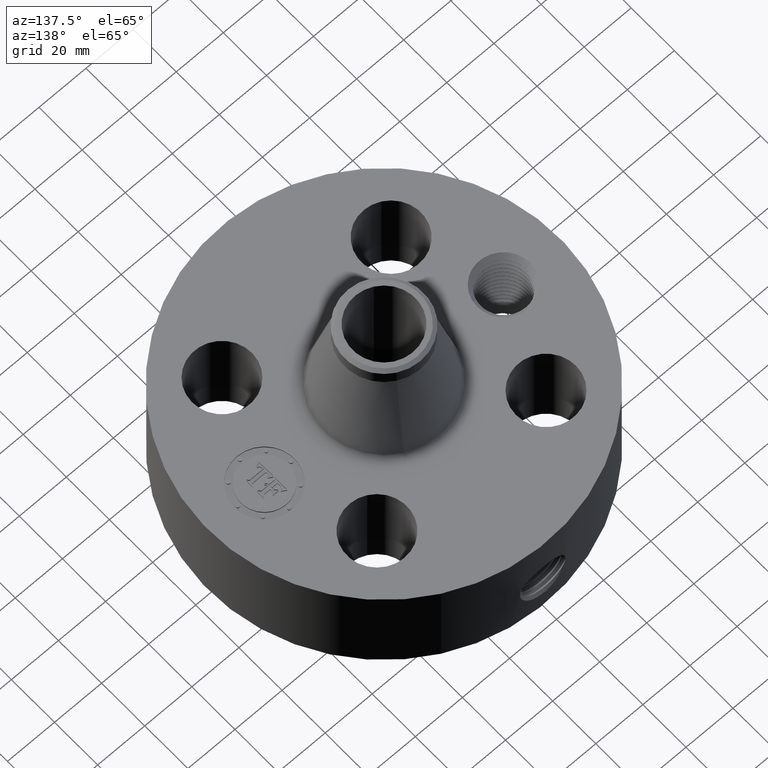
[diagram: clean part render]
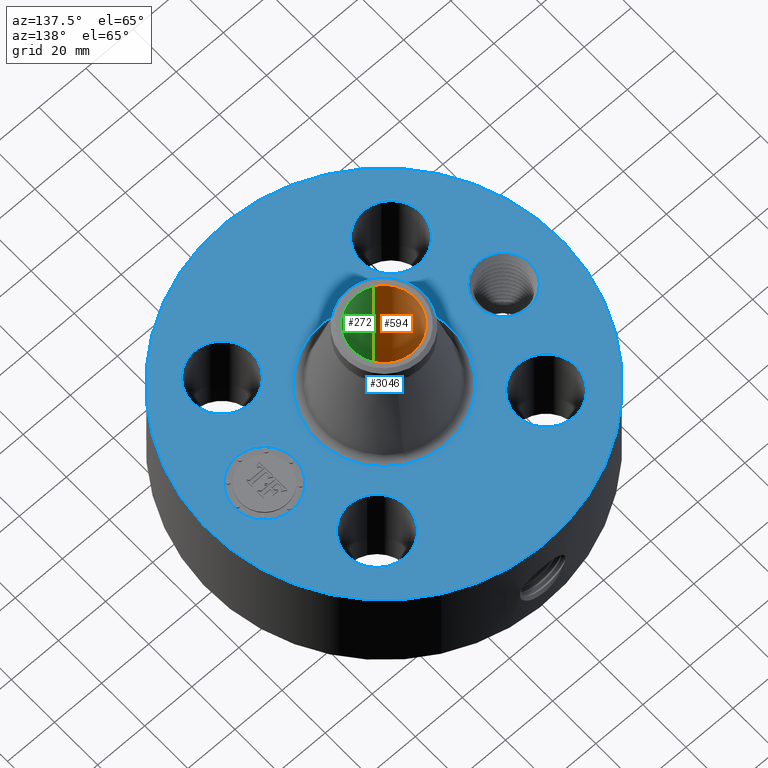
[diagram: same view with three faces highlighted in distinct colors, each labeled with its STEP entity id]
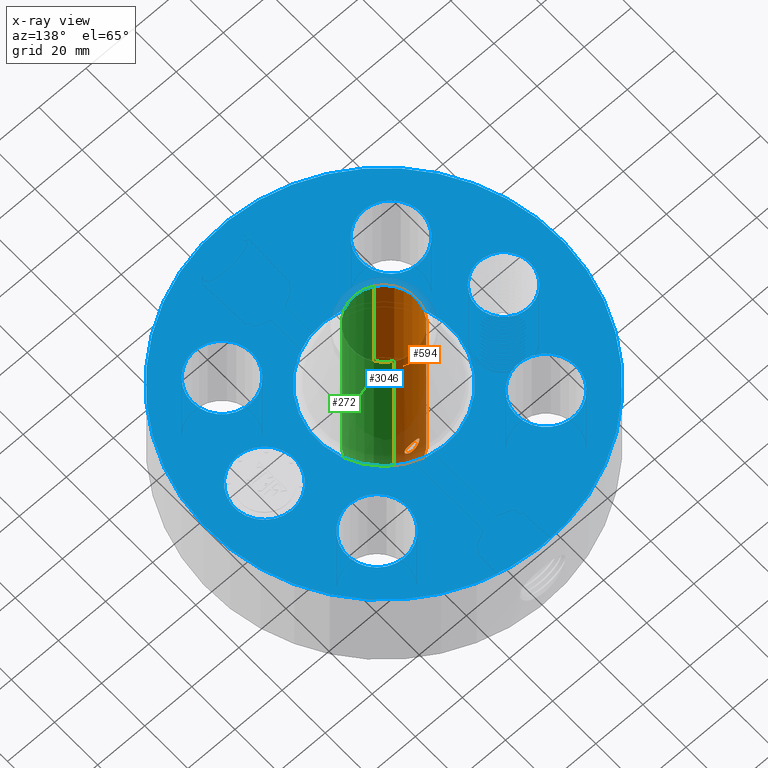
[diagram: x-ray of the same camera — body ghosted, the three highlighted faces saturated]
A machine part, auxiliary view with three faces highlighted in distinct colors.
The next image is the same camera in x-ray (body ghosted, the three faces saturated) — at least one of them is partly hidden behind the body in this view.
Their STEP definitions:

[orange] entity #594 — the highlighted cylindrical surface (partial cylindrical patch) has radius 13.3223 mm, axis along (0, 0, -1).
#232=AXIS2_PLACEMENT_3D('Cylinder Axis2P3D',#229,#230,#231) ;
#533=AXIS2_PLACEMENT_3D('Circle Axis2P3D',#531,#532,$) ;
#543=AXIS2_PLACEMENT_3D('Circle Axis2P3D',#541,#542,$) ;
#229=CARTESIAN_POINT('Axis2P3D Location',(0.,0.,1.75000000001)) ;
#238=CARTESIAN_POINT('Vertex',(0.251458694999,0.460292053713,3.50000000001)) ;
#240=CARTESIAN_POINT('Vertex',(-0.251458694999,-0.460292053713,3.50000000001)) ;
#243=CARTESIAN_POINT('Line Origine',(0.251458694999,0.460292053713,1.75000000001)) ;
#247=CARTESIAN_POINT('Vertex',(0.251458694999,0.460292053713,-5.31508345647E-015)) ;
#254=CARTESIAN_POINT('Vertex',(-0.251458694999,-0.460292053713,-5.31508345647E-015)) ;
#257=CARTESIAN_POINT('Line Origine',(-0.251458694999,-0.460292053713,1.75000000001)) ;
#531=CARTESIAN_POINT('Axis2P3D Location',(0.,0.,3.50000000001)) ;
#541=CARTESIAN_POINT('Axis2P3D Location',(0.,0.,-5.59482469102E-015)) ;
#553=CARTESIAN_POINT('Control Point',(-0.109697820237,0.512900222497,0.690071807677)) ;
#554=CARTESIAN_POINT('Control Point',(-0.103067995138,0.514318192952,0.677935994236)) ;
#555=CARTESIAN_POINT('Control Point',(-0.094771969541,0.515980503399,0.666739003861)) ;
#556=CARTESIAN_POINT('Control Point',(-0.0849803702612,0.51773919703,0.656766683969)) ;
#557=CARTESIAN_POINT('Control Point',(-0.0538199881034,0.522434964879,0.632784739658)) ;
#558=CARTESIAN_POINT('Control Point',(-0.0149493305924,0.525251537098,0.621930833715)) ;
#559=CARTESIAN_POINT('Control Point',(0.0116326804203,0.525346375616,0.621582790696)) ;
#560=CARTESIAN_POINT('Control Point',(0.0508447925119,0.522756079786,0.631451412035)) ;
#561=CARTESIAN_POINT('Control Point',(0.0826523564062,0.518124437442,0.654683886725)) ;
#562=CARTESIAN_POINT('Control Point',(0.0927261783338,0.516359982354,0.664453516059)) ;
#563=CARTESIAN_POINT('Control Point',(0.117112916642,0.511563161852,0.695769043994)) ;
#564=CARTESIAN_POINT('Control Point',(0.128164416092,0.508593381511,0.735004093707)) ;
#565=CARTESIAN_POINT('Control Point',(0.128487390483,0.508500379865,0.761961602396)) ;
#566=CARTESIAN_POINT('Control Point',(0.121927405503,0.510284589305,0.787542086658)) ;
#567=CARTESIAN_POINT('Control Point',(0.109697820237,0.512900222497,0.809928192329)) ;
#568=CARTESIAN_POINT('Vertex',(-0.109697820237,0.512900222497,0.690071807677)) ;
#570=CARTESIAN_POINT('Vertex',(0.109697820237,0.512900222497,0.809928192329)) ;
#574=CARTESIAN_POINT('Control Point',(-0.109697820237,0.512900222497,0.690071807677)) ;
#575=CARTESIAN_POINT('Control Point',(-0.116234280642,0.51150222065,0.702036718193)) ;
#576=CARTESIAN_POINT('Control Point',(-0.121151116865,0.510341730081,0.714914160907)) ;
#577=CARTESIAN_POINT('Control Point',(-0.12427729477,0.509563203993,0.728420059682)) ;
#578=CARTESIAN_POINT('Control Point',(-0.127559697455,0.508761572469,0.765208855743)) ;
#579=CARTESIAN_POINT('Control Point',(-0.117478559258,0.511227660569,0.801329040844)) ;
#580=CARTESIAN_POINT('Control Point',(-0.106063810002,0.513973823365,0.821921962222)) ;
#581=CARTESIAN_POINT('Control Point',(-0.0747703859217,0.520006013883,0.856599469487)) ;
#582=CARTESIAN_POINT('Control Point',(-0.0313370516027,0.524299170456,0.874347891388)) ;
#583=CARTESIAN_POINT('Control Point',(-0.00765580743139,0.52527137436,0.87804131915)) ;
#584=CARTESIAN_POINT('Control Point',(0.0355699630457,0.524258134677,0.874476504668)) ;
#585=CARTESIAN_POINT('Control Point',(0.0731881901034,0.519775727891,0.854056731066)) ;
#586=CARTESIAN_POINT('Control Point',(0.0882205331282,0.517280293423,0.841642253735)) ;
#587=CARTESIAN_POINT('Control Point',(0.10054648706,0.51485748681,0.826679595346)) ;
#588=CARTESIAN_POINT('Control Point',(0.109697820237,0.512900222497,0.809928192329)) ;
#230=DIRECTION('Axis2P3D Direction',(0.,0.,-0.0393700787402)) ;
#231=DIRECTION('Axis2P3D XDirection',(-0.0188750212049,-0.0345504945626,0.)) ;
#244=DIRECTION('Vector Direction',(0.,0.,-0.0393700787402)) ;
#258=DIRECTION('Vector Direction',(0.,0.,-0.0393700787402)) ;
#532=DIRECTION('Axis2P3D Direction',(0.,0.,-0.0393700787402)) ;
#542=DIRECTION('Axis2P3D Direction',(0.,0.,-0.0393700787402)) ;
#245=VECTOR('Line Direction',#244,0.0393700787402) ;
#259=VECTOR('Line Direction',#258,0.0393700787402) ;
#547=ORIENTED_EDGE('',*,*,#535,.F.) ;
#548=ORIENTED_EDGE('',*,*,#261,.T.) ;
#549=ORIENTED_EDGE('',*,*,#545,.T.) ;
#550=ORIENTED_EDGE('',*,*,#249,.F.) ;
#591=ORIENTED_EDGE('',*,*,#572,.F.) ;
#592=ORIENTED_EDGE('',*,*,#589,.T.) ;
#593=FACE_BOUND('',#590,.T.) ;
#594=ADVANCED_FACE('PartBody',(#551,#593),#233,.F.) ;
#552=B_SPLINE_CURVE_WITH_KNOTS('',5,(#553,#554,#555,#556,#557,#558,#559,#560,#561,#562,#563,#564,#565,#566,#567),.UNSPECIFIED.,.F.,.U.,(6,3,3,3,6),(0.,2.4967256134,7.04499234116,9.55164643702,14.1571855453),.UNSPECIFIED.) ;
#573=B_SPLINE_CURVE_WITH_KNOTS('',5,(#574,#575,#576,#577,#578,#579,#580,#581,#582,#583,#584,#585,#586,#587,#588),.UNSPECIFIED.,.F.,.U.,(6,3,3,3,6),(0.,2.46156540655,6.57020743803,10.7112749787,14.1575752351),.UNSPECIFIED.) ;
#534=CIRCLE('generated circle',#533,0.524500000002) ;
#544=CIRCLE('generated circle',#543,0.524500000002) ;
#233=CYLINDRICAL_SURFACE('generated cylinder',#232,0.524500000002) ;
#249=EDGE_CURVE('',#239,#248,#246,.T.) ;
#261=EDGE_CURVE('',#241,#255,#260,.T.) ;
#535=EDGE_CURVE('',#241,#239,#534,.T.) ;
#545=EDGE_CURVE('',#255,#248,#544,.T.) ;
#572=EDGE_CURVE('',#569,#571,#552,.T.) ;
#589=EDGE_CURVE('',#569,#571,#573,.T.) ;
#546=EDGE_LOOP('',(#547,#548,#549,#550)) ;
#590=EDGE_LOOP('',(#591,#592)) ;
#551=FACE_OUTER_BOUND('',#546,.T.) ;
#246=LINE('Line',#243,#245) ;
#260=LINE('Line',#257,#259) ;
#239=VERTEX_POINT('',#238) ;
#241=VERTEX_POINT('',#240) ;
#248=VERTEX_POINT('',#247) ;
#255=VERTEX_POINT('',#254) ;
#569=VERTEX_POINT('',#568) ;
#571=VERTEX_POINT('',#570) ;

[blue] entity #3046 — the highlighted planar face has unit normal (0, 0, -1).
#2190=AXIS2_PLACEMENT_3D('Circle Axis2P3D',#2188,#2189,$) ;
#2216=AXIS2_PLACEMENT_3D('Circle Axis2P3D',#2214,#2215,$) ;
#2914=AXIS2_PLACEMENT_3D('Plane Axis2P3D',#2911,#2912,#2913) ;
#2918=AXIS2_PLACEMENT_3D('Circle Axis2P3D',#2916,#2917,$) ;
#2927=AXIS2_PLACEMENT_3D('Circle Axis2P3D',#2925,#2926,$) ;
#2936=AXIS2_PLACEMENT_3D('Circle Axis2P3D',#2934,#2935,$) ;
#2945=AXIS2_PLACEMENT_3D('Circle Axis2P3D',#2943,#2944,$) ;
#2954=AXIS2_PLACEMENT_3D('Circle Axis2P3D',#2952,#2953,$) ;
#2963=AXIS2_PLACEMENT_3D('Circle Axis2P3D',#2961,#2962,$) ;
#2976=AXIS2_PLACEMENT_3D('Circle Axis2P3D',#2974,#2975,$) ;
#2985=AXIS2_PLACEMENT_3D('Circle Axis2P3D',#2983,#2984,$) ;
#2994=AXIS2_PLACEMENT_3D('Circle Axis2P3D',#2992,#2993,$) ;
#3003=AXIS2_PLACEMENT_3D('Circle Axis2P3D',#3001,#3002,$) ;
#3012=AXIS2_PLACEMENT_3D('Circle Axis2P3D',#3010,#3011,$) ;
#3021=AXIS2_PLACEMENT_3D('Circle Axis2P3D',#3019,#3020,$) ;
#3030=AXIS2_PLACEMENT_3D('Circle Axis2P3D',#3028,#3029,$) ;
#3039=AXIS2_PLACEMENT_3D('Circle Axis2P3D',#3037,#3038,$) ;
#2188=CARTESIAN_POINT('Axis2P3D Location',(0.,0.,1.75000000001)) ;
#2192=CARTESIAN_POINT('Vertex',(-0.538654850713,-0.986001090472,1.75000000001)) ;
#2194=CARTESIAN_POINT('Vertex',(0.538654850713,0.986001090472,1.75000000001)) ;
#2214=CARTESIAN_POINT('Axis2P3D Location',(0.,0.,1.75000000001)) ;
#2911=CARTESIAN_POINT('Axis2P3D Location',(0.,2.94000000001,1.75000000001)) ;
#2916=CARTESIAN_POINT('Axis2P3D Location',(0.,0.,1.75000000001)) ;
#2920=CARTESIAN_POINT('Vertex',(1.4095110835,2.58009273197,1.75000000001)) ;
#2922=CARTESIAN_POINT('Vertex',(-1.4095110835,-2.58009273197,1.75000000001)) ;
#2925=CARTESIAN_POINT('Axis2P3D Location',(0.,0.,1.75000000001)) ;
#2934=CARTESIAN_POINT('Axis2P3D Location',(-2.00000000001,5.59482469102E-016,1.75000000001)) ;
#2938=CARTESIAN_POINT('Vertex',(-2.38859355841,0.212289628495,1.75000000001)) ;
#2940=CARTESIAN_POINT('Vertex',(-1.6114064416,-0.212289628495,1.75000000001)) ;
#2943=CARTESIAN_POINT('Axis2P3D Location',(-2.00000000001,5.59482469102E-016,1.75000000001)) ;
#2952=CARTESIAN_POINT('Axis2P3D Location',(1.41421356238,-1.41421356238,1.75000000001)) ;
#2956=CARTESIAN_POINT('Vertex',(0.975422281432,-1.17450079308,1.75000000001)) ;
#2958=CARTESIAN_POINT('Vertex',(1.85300484333,-1.65392633168,1.75000000001)) ;
#2961=CARTESIAN_POINT('Axis2P3D Location',(1.41421356238,-1.41421356238,1.75000000001)) ;
#2974=CARTESIAN_POINT('Axis2P3D Location',(-1.41421356238,-1.41421356238,1.75000000001)) ;
#2978=CARTESIAN_POINT('Vertex',(-1.65392633168,-1.85300484333,1.75000000001)) ;
#2980=CARTESIAN_POINT('Vertex',(-1.17450079308,-0.975422281432,1.75000000001)) ;
#2983=CARTESIAN_POINT('Axis2P3D Location',(-1.41421356238,-1.41421356238,1.75000000001)) ;
#2992=CARTESIAN_POINT('Axis2P3D Location',(-1.41421356238,1.41421356238,1.75000000001)) ;
#2996=CARTESIAN_POINT('Vertex',(-1.85300484333,1.65392633168,1.75000000001)) ;
#2998=CARTESIAN_POINT('Vertex',(-0.975422281432,1.17450079308,1.75000000001)) ;
#3001=CARTESIAN_POINT('Axis2P3D Location',(-1.41421356238,1.41421356238,1.75000000001)) ;
#3010=CARTESIAN_POINT('Axis2P3D Location',(1.41421356238,1.41421356238,1.75000000001)) ;
#3014=CARTESIAN_POINT('Vertex',(1.65392633168,1.85300484333,1.75000000001)) ;
#3016=CARTESIAN_POINT('Vertex',(1.17450079308,0.975422281432,1.75000000001)) ;
#3019=CARTESIAN_POINT('Axis2P3D Location',(1.41421356238,1.41421356238,1.75000000001)) ;
#3028=CARTESIAN_POINT('Axis2P3D Location',(2.00000000001,-5.03534222192E-015,1.75000000001)) ;
#3032=CARTESIAN_POINT('Vertex',(2.00000000001,0.499999995002,1.75000000001)) ;
#3034=CARTESIAN_POINT('Vertex',(2.00000000001,-0.499999995002,1.75000000001)) ;
#3037=CARTESIAN_POINT('Axis2P3D Location',(2.00000000001,-5.03534222192E-015,1.75000000001)) ;
#2189=DIRECTION('Axis2P3D Direction',(0.,0.,-0.0393700787402)) ;
#2215=DIRECTION('Axis2P3D Direction',(0.,0.,-0.0393700787402)) ;
#2912=DIRECTION('Axis2P3D Direction',(0.,0.,-0.0393700787402)) ;
#2913=DIRECTION('Axis2P3D XDirection',(0.0393700787402,0.,0.)) ;
#2917=DIRECTION('Axis2P3D Direction',(0.,0.,-0.0393700787402)) ;
#2926=DIRECTION('Axis2P3D Direction',(0.,0.,-0.0393700787402)) ;
#2935=DIRECTION('Axis2P3D Direction',(0.,0.,-0.0393700787402)) ;
#2944=DIRECTION('Axis2P3D Direction',(0.,0.,-0.0393700787402)) ;
#2953=DIRECTION('Axis2P3D Direction',(0.,0.,-0.0393700787402)) ;
#2962=DIRECTION('Axis2P3D Direction',(0.,0.,-0.0393700787402)) ;
#2975=DIRECTION('Axis2P3D Direction',(0.,0.,-0.0393700787402)) ;
#2984=DIRECTION('Axis2P3D Direction',(0.,0.,-0.0393700787402)) ;
#2993=DIRECTION('Axis2P3D Direction',(0.,0.,-0.0393700787402)) ;
#3002=DIRECTION('Axis2P3D Direction',(0.,0.,-0.0393700787402)) ;
#3011=DIRECTION('Axis2P3D Direction',(0.,0.,-0.0393700787402)) ;
#3020=DIRECTION('Axis2P3D Direction',(0.,0.,-0.0393700787402)) ;
#3029=DIRECTION('Axis2P3D Direction',(0.,0.,-0.0393700787402)) ;
#3038=DIRECTION('Axis2P3D Direction',(0.,0.,-0.0393700787402)) ;
#2931=ORIENTED_EDGE('',*,*,#2924,.F.) ;
#2932=ORIENTED_EDGE('',*,*,#2929,.F.) ;
#2949=ORIENTED_EDGE('',*,*,#2942,.T.) ;
#2950=ORIENTED_EDGE('',*,*,#2947,.T.) ;
#2967=ORIENTED_EDGE('',*,*,#2960,.T.) ;
#2968=ORIENTED_EDGE('',*,*,#2965,.T.) ;
#2971=ORIENTED_EDGE('',*,*,#2196,.T.) ;
#2972=ORIENTED_EDGE('',*,*,#2218,.T.) ;
#2989=ORIENTED_EDGE('',*,*,#2982,.T.) ;
#2990=ORIENTED_EDGE('',*,*,#2987,.T.) ;
#3007=ORIENTED_EDGE('',*,*,#3000,.T.) ;
#3008=ORIENTED_EDGE('',*,*,#3005,.T.) ;
#3025=ORIENTED_EDGE('',*,*,#3018,.T.) ;
#3026=ORIENTED_EDGE('',*,*,#3023,.T.) ;
#3043=ORIENTED_EDGE('',*,*,#3036,.T.) ;
#3044=ORIENTED_EDGE('',*,*,#3041,.T.) ;
#2951=FACE_BOUND('',#2948,.T.) ;
#2969=FACE_BOUND('',#2966,.T.) ;
#2973=FACE_BOUND('',#2970,.T.) ;
#2991=FACE_BOUND('',#2988,.T.) ;
#3009=FACE_BOUND('',#3006,.T.) ;
#3027=FACE_BOUND('',#3024,.T.) ;
#3045=FACE_BOUND('',#3042,.T.) ;
#3046=ADVANCED_FACE('PartBody',(#2933,#2951,#2969,#2973,#2991,#3009,#3027,#3045),#2915,.F.) ;
#2191=CIRCLE('generated circle',#2190,1.12354225493) ;
#2217=CIRCLE('generated circle',#2216,1.12354225493) ;
#2919=CIRCLE('generated circle',#2918,2.94000000001) ;
#2928=CIRCLE('generated circle',#2927,2.94000000001) ;
#2937=CIRCLE('generated circle',#2936,0.442800000002) ;
#2946=CIRCLE('generated circle',#2945,0.442800000002) ;
#2955=CIRCLE('generated circle',#2954,0.500000000002) ;
#2964=CIRCLE('generated circle',#2963,0.500000000002) ;
#2977=CIRCLE('generated circle',#2976,0.500000000002) ;
#2986=CIRCLE('generated circle',#2985,0.500000000002) ;
#2995=CIRCLE('generated circle',#2994,0.500000000002) ;
#3004=CIRCLE('generated circle',#3003,0.500000000002) ;
#3013=CIRCLE('generated circle',#3012,0.500000000002) ;
#3022=CIRCLE('generated circle',#3021,0.500000000002) ;
#3031=CIRCLE('generated circle',#3030,0.499999995002) ;
#3040=CIRCLE('generated circle',#3039,0.499999995002) ;
#2196=EDGE_CURVE('',#2193,#2195,#2191,.T.) ;
#2218=EDGE_CURVE('',#2195,#2193,#2217,.T.) ;
#2924=EDGE_CURVE('',#2921,#2923,#2919,.T.) ;
#2929=EDGE_CURVE('',#2923,#2921,#2928,.T.) ;
#2942=EDGE_CURVE('',#2939,#2941,#2937,.T.) ;
#2947=EDGE_CURVE('',#2941,#2939,#2946,.T.) ;
#2960=EDGE_CURVE('',#2957,#2959,#2955,.T.) ;
#2965=EDGE_CURVE('',#2959,#2957,#2964,.T.) ;
#2982=EDGE_CURVE('',#2979,#2981,#2977,.T.) ;
#2987=EDGE_CURVE('',#2981,#2979,#2986,.T.) ;
#3000=EDGE_CURVE('',#2997,#2999,#2995,.T.) ;
#3005=EDGE_CURVE('',#2999,#2997,#3004,.T.) ;
#3018=EDGE_CURVE('',#3015,#3017,#3013,.T.) ;
#3023=EDGE_CURVE('',#3017,#3015,#3022,.T.) ;
#3036=EDGE_CURVE('',#3033,#3035,#3031,.T.) ;
#3041=EDGE_CURVE('',#3035,#3033,#3040,.T.) ;
#2930=EDGE_LOOP('',(#2931,#2932)) ;
#2948=EDGE_LOOP('',(#2949,#2950)) ;
#2966=EDGE_LOOP('',(#2967,#2968)) ;
#2970=EDGE_LOOP('',(#2971,#2972)) ;
#2988=EDGE_LOOP('',(#2989,#2990)) ;
#3006=EDGE_LOOP('',(#3007,#3008)) ;
#3024=EDGE_LOOP('',(#3025,#3026)) ;
#3042=EDGE_LOOP('',(#3043,#3044)) ;
#2933=FACE_OUTER_BOUND('',#2930,.T.) ;
#2915=PLANE('',#2914) ;
#2193=VERTEX_POINT('',#2192) ;
#2195=VERTEX_POINT('',#2194) ;
#2921=VERTEX_POINT('',#2920) ;
#2923=VERTEX_POINT('',#2922) ;
#2939=VERTEX_POINT('',#2938) ;
#2941=VERTEX_POINT('',#2940) ;
#2957=VERTEX_POINT('',#2956) ;
#2959=VERTEX_POINT('',#2958) ;
#2979=VERTEX_POINT('',#2978) ;
#2981=VERTEX_POINT('',#2980) ;
#2997=VERTEX_POINT('',#2996) ;
#2999=VERTEX_POINT('',#2998) ;
#3015=VERTEX_POINT('',#3014) ;
#3017=VERTEX_POINT('',#3016) ;
#3033=VERTEX_POINT('',#3032) ;
#3035=VERTEX_POINT('',#3034) ;

[green] entity #272 — the highlighted cylindrical surface (partial cylindrical patch) has radius 13.3223 mm, axis along (0, 0, -1).
#232=AXIS2_PLACEMENT_3D('Cylinder Axis2P3D',#229,#230,#231) ;
#236=AXIS2_PLACEMENT_3D('Circle Axis2P3D',#234,#235,$) ;
#252=AXIS2_PLACEMENT_3D('Circle Axis2P3D',#250,#251,$) ;
#81=CARTESIAN_POINT('Control Point',(0.109697820237,-0.512900222497,0.690071807677)) ;
#82=CARTESIAN_POINT('Control Point',(0.103067995137,-0.514318192952,0.677935994236)) ;
#83=CARTESIAN_POINT('Control Point',(0.0947719581262,-0.515980499116,0.666738985536)) ;
#84=CARTESIAN_POINT('Control Point',(0.0849803524263,-0.517739192652,0.656766673012)) ;
#85=CARTESIAN_POINT('Control Point',(0.0538200206066,-0.522434972853,0.632784759628)) ;
#86=CARTESIAN_POINT('Control Point',(0.0149492713962,-0.525251522571,0.621930797341)) ;
#87=CARTESIAN_POINT('Control Point',(-0.01163274031,-0.525346389715,0.621582825623)) ;
#88=CARTESIAN_POINT('Control Point',(-0.0508447594992,-0.522756072016,0.631451392784)) ;
#89=CARTESIAN_POINT('Control Point',(-0.0826523745989,-0.518124441725,0.654683897333)) ;
#90=CARTESIAN_POINT('Control Point',(-0.0927261902207,-0.516359986789,0.664453534262)) ;
#91=CARTESIAN_POINT('Control Point',(-0.117112894788,-0.511563153706,0.695769010529)) ;
#92=CARTESIAN_POINT('Control Point',(-0.128164456245,-0.508593396478,0.735004155187)) ;
#93=CARTESIAN_POINT('Control Point',(-0.128487429324,-0.508500394439,0.761961540036)) ;
#94=CARTESIAN_POINT('Control Point',(-0.121927405505,-0.510284589305,0.787542086654)) ;
#95=CARTESIAN_POINT('Control Point',(-0.109697820237,-0.512900222497,0.809928192329)) ;
#96=CARTESIAN_POINT('Vertex',(0.109697820237,-0.512900222497,0.690071807677)) ;
#98=CARTESIAN_POINT('Vertex',(-0.109697820237,-0.512900222497,0.809928192329)) ;
#206=CARTESIAN_POINT('Control Point',(0.109697820237,-0.512900222497,0.690071807677)) ;
#207=CARTESIAN_POINT('Control Point',(0.116234280641,-0.51150222065,0.702036718191)) ;
#208=CARTESIAN_POINT('Control Point',(0.121151127959,-0.510341734245,0.714914178716)) ;
#209=CARTESIAN_POINT('Control Point',(0.124277293547,-0.50956320351,0.728420080565)) ;
#210=CARTESIAN_POINT('Control Point',(0.127559699495,-0.508761573275,0.765208820883)) ;
#211=CARTESIAN_POINT('Control Point',(0.117478555855,-0.511227659222,0.801329099021)) ;
#212=CARTESIAN_POINT('Control Point',(0.106063763919,-0.513973810499,0.82192199598)) ;
#213=CARTESIAN_POINT('Control Point',(0.0747704323733,-0.52000602685,0.856599435457)) ;
#214=CARTESIAN_POINT('Control Point',(0.0313370047927,-0.524299157386,0.874347925682)) ;
#215=CARTESIAN_POINT('Control Point',(0.00765575422233,-0.525271382601,0.878041299839)) ;
#216=CARTESIAN_POINT('Control Point',(-0.0355699187569,-0.524258127819,0.87447652074)) ;
#217=CARTESIAN_POINT('Control Point',(-0.0731882269562,-0.519775733599,0.854056717693)) ;
#218=CARTESIAN_POINT('Control Point',(-0.0882205113795,-0.517280285261,0.841642288649)) ;
#219=CARTESIAN_POINT('Control Point',(-0.10054648706,-0.51485748681,0.826679595347)) ;
#220=CARTESIAN_POINT('Control Point',(-0.109697820237,-0.512900222497,0.809928192329)) ;
#229=CARTESIAN_POINT('Axis2P3D Location',(0.,0.,1.75000000001)) ;
#234=CARTESIAN_POINT('Axis2P3D Location',(0.,0.,3.50000000001)) ;
#238=CARTESIAN_POINT('Vertex',(0.251458694999,0.460292053713,3.50000000001)) ;
#240=CARTESIAN_POINT('Vertex',(-0.251458694999,-0.460292053713,3.50000000001)) ;
#243=CARTESIAN_POINT('Line Origine',(0.251458694999,0.460292053713,1.75000000001)) ;
#247=CARTESIAN_POINT('Vertex',(0.251458694999,0.460292053713,-5.31508345647E-015)) ;
#250=CARTESIAN_POINT('Axis2P3D Location',(0.,0.,-5.59482469102E-015)) ;
#254=CARTESIAN_POINT('Vertex',(-0.251458694999,-0.460292053713,-5.31508345647E-015)) ;
#257=CARTESIAN_POINT('Line Origine',(-0.251458694999,-0.460292053713,1.75000000001)) ;
#230=DIRECTION('Axis2P3D Direction',(0.,0.,-0.0393700787402)) ;
#231=DIRECTION('Axis2P3D XDirection',(-0.0188750212049,-0.0345504945626,0.)) ;
#235=DIRECTION('Axis2P3D Direction',(0.,0.,-0.0393700787402)) ;
#244=DIRECTION('Vector Direction',(0.,0.,-0.0393700787402)) ;
#251=DIRECTION('Axis2P3D Direction',(0.,0.,-0.0393700787402)) ;
#258=DIRECTION('Vector Direction',(0.,0.,-0.0393700787402)) ;
#245=VECTOR('Line Direction',#244,0.0393700787402) ;
#259=VECTOR('Line Direction',#258,0.0393700787402) ;
#263=ORIENTED_EDGE('',*,*,#242,.F.) ;
#264=ORIENTED_EDGE('',*,*,#249,.T.) ;
#265=ORIENTED_EDGE('',*,*,#256,.T.) ;
#266=ORIENTED_EDGE('',*,*,#261,.F.) ;
#269=ORIENTED_EDGE('',*,*,#100,.F.) ;
#270=ORIENTED_EDGE('',*,*,#221,.T.) ;
#271=FACE_BOUND('',#268,.T.) ;
#272=ADVANCED_FACE('PartBody',(#267,#271),#233,.F.) ;
#80=B_SPLINE_CURVE_WITH_KNOTS('',5,(#81,#82,#83,#84,#85,#86,#87,#88,#89,#90,#91,#92,#93,#94,#95),.UNSPECIFIED.,.F.,.U.,(6,3,3,3,6),(0.,2.49672561346,7.04499234127,9.55164643759,14.1571855466),.UNSPECIFIED.) ;
#205=B_SPLINE_CURVE_WITH_KNOTS('',5,(#206,#207,#208,#209,#210,#211,#212,#213,#214,#215,#216,#217,#218,#219,#220),.UNSPECIFIED.,.F.,.U.,(6,3,3,3,6),(0.,2.46156540621,6.57020743759,10.7112749782,14.1575752348),.UNSPECIFIED.) ;
#237=CIRCLE('generated circle',#236,0.524500000002) ;
#253=CIRCLE('generated circle',#252,0.524500000002) ;
#233=CYLINDRICAL_SURFACE('generated cylinder',#232,0.524500000002) ;
#100=EDGE_CURVE('',#97,#99,#80,.T.) ;
#221=EDGE_CURVE('',#97,#99,#205,.T.) ;
#242=EDGE_CURVE('',#239,#241,#237,.T.) ;
#249=EDGE_CURVE('',#239,#248,#246,.T.) ;
#256=EDGE_CURVE('',#248,#255,#253,.T.) ;
#261=EDGE_CURVE('',#241,#255,#260,.T.) ;
#262=EDGE_LOOP('',(#263,#264,#265,#266)) ;
#268=EDGE_LOOP('',(#269,#270)) ;
#267=FACE_OUTER_BOUND('',#262,.T.) ;
#246=LINE('Line',#243,#245) ;
#260=LINE('Line',#257,#259) ;
#97=VERTEX_POINT('',#96) ;
#99=VERTEX_POINT('',#98) ;
#239=VERTEX_POINT('',#238) ;
#241=VERTEX_POINT('',#240) ;
#248=VERTEX_POINT('',#247) ;
#255=VERTEX_POINT('',#254) ;